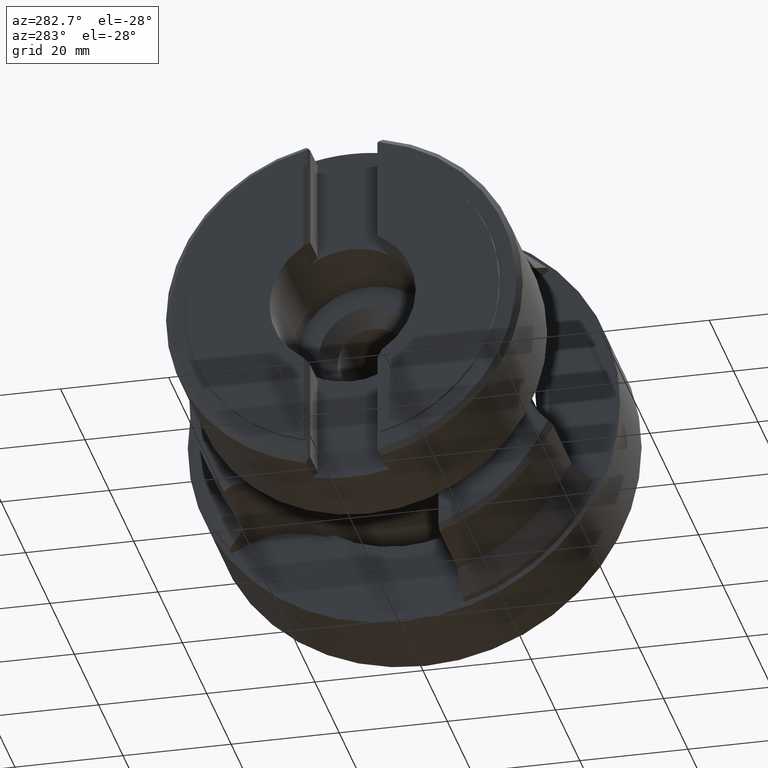
[diagram: clean part render]
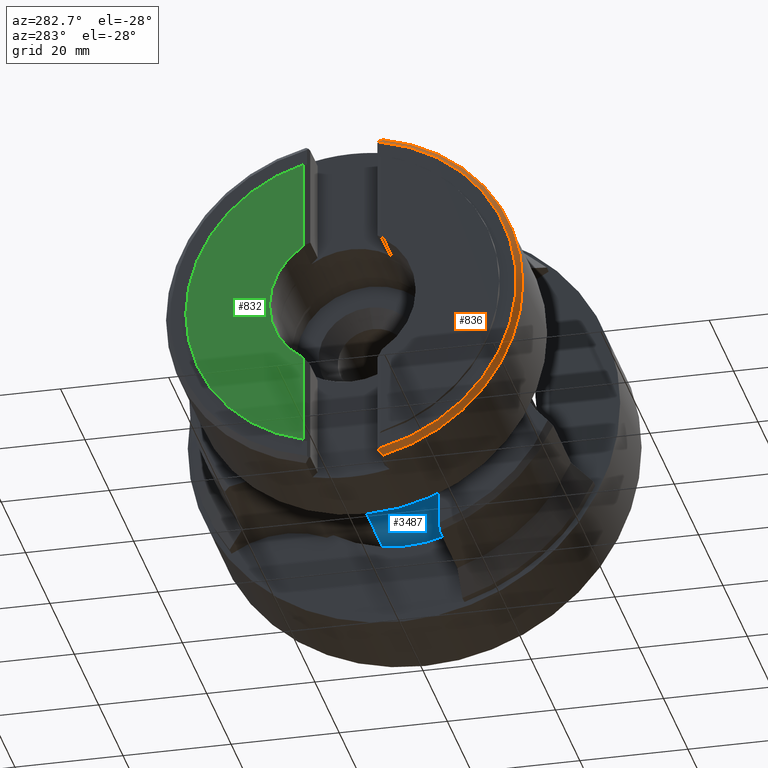
[diagram: same view with three faces highlighted in distinct colors, each labeled with its STEP entity id]
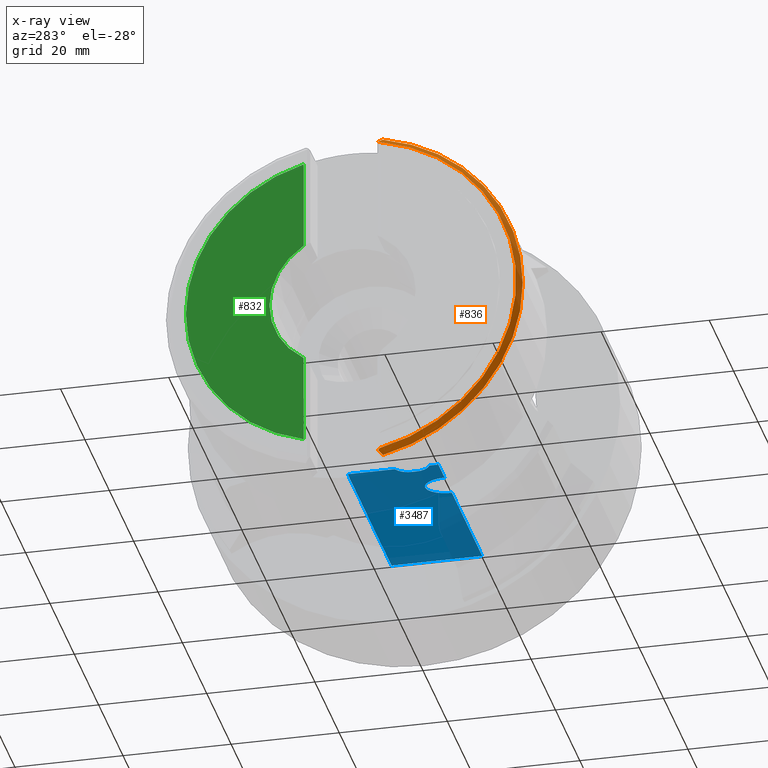
[diagram: x-ray of the same camera — body ghosted, the three highlighted faces saturated]
A machine part, auxiliary view with three faces highlighted in distinct colors.
The next image is the same camera in x-ray (body ghosted, the three faces saturated) — at least one of them is partly hidden behind the body in this view.
Their STEP definitions:

[orange] entity #836 — the highlighted conical surface has half-angle 45 deg.
#387 = CARTESIAN_POINT ( 'NONE',  ( -65.50000000000000000, 0.0000000000000000000, 0.0000000000000000000 ) ) ;
#391 = DIRECTION ( 'NONE',  ( -1.000000000000000000, 0.0000000000000000000, 0.0000000000000000000 ) ) ;
#401 = DIRECTION ( 'NONE',  ( 0.0000000000000000000, 0.0000000000000000000, -1.000000000000000000 ) ) ;
#403 = CARTESIAN_POINT ( 'NONE',  ( -65.26845168078169500, -6.468451680781776700, -31.57581099366245400 ) ) ;
#404 = CARTESIAN_POINT ( 'NONE',  ( -65.01305832924452900, -6.684823942242562800, -31.79218325512323800 ) ) ;
#409 = CARTESIAN_POINT ( 'NONE',  ( -64.75688560303898100, -6.900737243436138300, -32.00809655631681500 ) ) ;
#410 = CARTESIAN_POINT ( 'NONE',  ( -64.49999999999998600, -7.116224437974461900, -32.22358375085513400 ) ) ;
#603 = AXIS2_PLACEMENT_3D ( 'NONE', #4609, #4608, #4610 ) ;
#737 = VERTEX_POINT ( 'NONE', #4750 ) ;
#748 = VERTEX_POINT ( 'NONE', #4740 ) ;
#749 = VERTEX_POINT ( 'NONE', #4739 ) ;
#751 = VERTEX_POINT ( 'NONE', #4737 ) ;
#752 = VERTEX_POINT ( 'NONE', #4736 ) ;
#753 = VERTEX_POINT ( 'NONE', #4735 ) ;
#836 = ADVANCED_FACE ( 'NONE', ( #2336 ), #2344, .T. ) ;
#1157 = EDGE_LOOP ( 'NONE', ( #1348, #1347, #1346, #1345, #1344, #1343 ) ) ;
#1343 = ORIENTED_EDGE ( 'NONE', *, *, #3242, .F. ) ;
#1344 = ORIENTED_EDGE ( 'NONE', *, *, #3282, .F. ) ;
#1345 = ORIENTED_EDGE ( 'NONE', *, *, #3326, .F. ) ;
#1346 = ORIENTED_EDGE ( 'NONE', *, *, #3407, .F. ) ;
#1347 = ORIENTED_EDGE ( 'NONE', *, *, #3101, .F. ) ;
#1348 = ORIENTED_EDGE ( 'NONE', *, *, #3342, .F. ) ;
#1630 = DIRECTION ( 'NONE',  ( 0.0000000000000000000, 0.0000000000000000000, -1.000000000000000000 ) ) ;
#1631 = DIRECTION ( 'NONE',  ( 1.000000000000000000, 0.0000000000000000000, 0.0000000000000000000 ) ) ;
#1632 = CARTESIAN_POINT ( 'NONE',  ( -64.49999999999998600, 0.0000000000000000000, 0.0000000000000000000 ) ) ;
#1876 = CARTESIAN_POINT ( 'NONE',  ( -65.50000000000000000, -6.700000000000070300, -31.29073345257344500 ) ) ;
#1877 = CARTESIAN_POINT ( 'NONE',  ( -65.42296870992433400, -6.622968709924411900, -31.38600481878947000 ) ) ;
#1882 = CARTESIAN_POINT ( 'NONE',  ( -65.34578476908986000, -6.545784769089933300, -31.48102988041959100 ) ) ;
#1883 = CARTESIAN_POINT ( 'NONE',  ( -65.26845168078169500, -6.468451680781776700, -31.57581099366245400 ) ) ;
#1916 = CARTESIAN_POINT ( 'NONE',  ( -64.49999999999998600, -7.116224437974453900, 32.22358375085514100 ) ) ;
#1917 = CARTESIAN_POINT ( 'NONE',  ( -64.75688560303898100, -6.900737243436133800, 32.00809655631682200 ) ) ;
#1922 = CARTESIAN_POINT ( 'NONE',  ( -65.01305832924452900, -6.684823942242554800, 31.79218325512323800 ) ) ;
#1923 = CARTESIAN_POINT ( 'NONE',  ( -65.26845168078169500, -6.468451680781778500, 31.57581099366246100 ) ) ;
#2037 = CARTESIAN_POINT ( 'NONE',  ( -65.26845168078169500, -6.468451680781778500, 31.57581099366246100 ) ) ;
#2038 = CARTESIAN_POINT ( 'NONE',  ( -65.34578476908984600, -6.545784769089931600, 31.48102988041959100 ) ) ;
#2041 = CARTESIAN_POINT ( 'NONE',  ( -65.42296870992433400, -6.622968709924409200, 31.38600481878947700 ) ) ;
#2042 = CARTESIAN_POINT ( 'NONE',  ( -65.50000000000000000, -6.700000000000070300, 31.29073345257344500 ) ) ;
#2336 = FACE_OUTER_BOUND ( 'NONE', #1157, .T. ) ;
#2344 = CONICAL_SURFACE ( 'NONE', #603, 32.00000000000000000, 0.7853981633974415100 ) ;
#2491 = AXIS2_PLACEMENT_3D ( 'NONE', #1632, #1631, #1630 ) ;
#2554 = AXIS2_PLACEMENT_3D ( 'NONE', #387, #391, #401 ) ;
#2666 = CIRCLE ( 'NONE', #2554, 32.00000000000000000 ) ;
#2804 = B_SPLINE_CURVE_WITH_KNOTS ( 'NONE', 3,
 ( #410, #409, #404, #403 ),
 .UNSPECIFIED., .F., .F.,
 ( 4, 4 ),
 ( 3.103091456204127800E-007, 0.001196026102724195000 ),
 .UNSPECIFIED. ) ;
#2816 = B_SPLINE_CURVE_WITH_KNOTS ( 'NONE', 3,
 ( #1923, #1922, #1917, #1916 ),
 .UNSPECIFIED., .F., .F.,
 ( 4, 4 ),
 ( 0.0003620073726228053500, 0.001557723166201373000 ),
 .UNSPECIFIED. ) ;
#2837 = B_SPLINE_CURVE_WITH_KNOTS ( 'NONE', 3,
 ( #2042, #2041, #2038, #2037 ),
 .UNSPECIFIED., .F., .F.,
 ( 4, 4 ),
 ( 3.757443752620099400E-007, 0.0004345390574576388600 ),
 .UNSPECIFIED. ) ;
#3101 = EDGE_CURVE ( 'NONE', #752, #753, #2804, .T. ) ;
#3242 = EDGE_CURVE ( 'NONE', #751, #748, #2666, .T. ) ;
#3282 = EDGE_CURVE ( 'NONE', #748, #737, #2837, .T. ) ;
#3326 = EDGE_CURVE ( 'NONE', #737, #749, #2816, .T. ) ;
#3342 = EDGE_CURVE ( 'NONE', #753, #751, #4434, .T. ) ;
#3407 = EDGE_CURVE ( 'NONE', #749, #752, #3593, .T. ) ;
#3593 = CIRCLE ( 'NONE', #2491, 33.00000000000000000 ) ;
#4434 = B_SPLINE_CURVE_WITH_KNOTS ( 'NONE', 3,
 ( #1883, #1882, #1877, #1876 ),
 .UNSPECIFIED., .F., .F.,
 ( 4, 4 ),
 ( 0.0003674702389595656800, 0.0008016335520419370700 ),
 .UNSPECIFIED. ) ;
#4608 = DIRECTION ( 'NONE',  ( 1.000000000000000000, 0.0000000000000000000, 0.0000000000000000000 ) ) ;
#4609 = CARTESIAN_POINT ( 'NONE',  ( -65.50000000000000000, 0.0000000000000000000, 0.0000000000000000000 ) ) ;
#4610 = DIRECTION ( 'NONE',  ( 0.0000000000000000000, 0.0000000000000000000, -1.000000000000000000 ) ) ;
#4735 = CARTESIAN_POINT ( 'NONE',  ( -65.26845168078169500, -6.468451680781776700, -31.57581099366245400 ) ) ;
#4736 = CARTESIAN_POINT ( 'NONE',  ( -64.49999999999998600, -7.116224437974461900, -32.22358375085513400 ) ) ;
#4737 = CARTESIAN_POINT ( 'NONE',  ( -65.50000000000000000, -6.700000000000070300, -31.29073345257344500 ) ) ;
#4739 = CARTESIAN_POINT ( 'NONE',  ( -64.49999999999998600, -7.116224437974453900, 32.22358375085514100 ) ) ;
#4740 = CARTESIAN_POINT ( 'NONE',  ( -65.50000000000000000, -6.700000000000070300, 31.29073345257344500 ) ) ;
#4750 = CARTESIAN_POINT ( 'NONE',  ( -65.26845168078169500, -6.468451680781778500, 31.57581099366246100 ) ) ;

[blue] entity #3487 — the highlighted planar face has unit normal (0, -0, 1).
#54 = CARTESIAN_POINT ( 'NONE',  ( -0.9999999999999991100, 23.50000000000000000, -20.39000000000000100 ) ) ;
#71 = DIRECTION ( 'NONE',  ( 0.0000000000000000000, -1.000000000000000000, 0.0000000000000000000 ) ) ;
#85 = CARTESIAN_POINT ( 'NONE',  ( -37.00000000000001400, 37.84745875999999500, -20.39000000000000100 ) ) ;
#88 = DIRECTION ( 'NONE',  ( 0.0000000000000000000, 1.000000000000000000, 0.0000000000000000000 ) ) ;
#114 = DIRECTION ( 'NONE',  ( 0.0000000000000000000, 1.000000000000000000, 0.0000000000000000000 ) ) ;
#115 = CARTESIAN_POINT ( 'NONE',  ( -35.30000000000001800, -11.17000000000000300, -20.39000000000000100 ) ) ;
#116 = CARTESIAN_POINT ( 'NONE',  ( -25.90000000000000600, -11.17000000000000300, -20.39000000000000100 ) ) ;
#117 = CARTESIAN_POINT ( 'NONE',  ( -25.90000000000000900, -8.684718625761433900, -20.38999999999999700 ) ) ;
#127 = CARTESIAN_POINT ( 'NONE',  ( -28.90000000000000900, -6.927359312880719600, -20.39000000000000100 ) ) ;
#131 = CARTESIAN_POINT ( 'NONE',  ( -27.14264068711928600, -6.927359312880718700, -20.38999999999999700 ) ) ;
#172 = DIRECTION ( 'NONE',  ( 0.0000000000000000000, 1.000000000000000000, 0.0000000000000000000 ) ) ;
#184 = CARTESIAN_POINT ( 'NONE',  ( -37.00000000000001400, 37.84745875999999500, -20.39000000000000100 ) ) ;
#392 = DIRECTION ( 'NONE',  ( 1.000000000000000000, -0.0000000000000000000, -0.0000000000000000000 ) ) ;
#402 = CARTESIAN_POINT ( 'NONE',  ( -40.00000000000000000, -11.17000000000000300, -20.39000000000000100 ) ) ;
#1285 = VERTEX_POINT ( 'NONE', #5229 ) ;
#1286 = VERTEX_POINT ( 'NONE', #5278 ) ;
#1554 = PLANE ( 'NONE',  #2637 ) ;
#1598 = DIRECTION ( 'NONE',  ( 1.000000000000000000, 0.0000000000000000000, -0.0000000000000000000 ) ) ;
#1656 = DIRECTION ( 'NONE',  ( 0.0000000000000000000, -0.0000000000000000000, 1.000000000000000000 ) ) ;
#1694 = CARTESIAN_POINT ( 'NONE',  ( -28.90000000000000900, -6.927359312880719600, -20.39000000000000100 ) ) ;
#1695 = CARTESIAN_POINT ( 'NONE',  ( -30.65735931288072200, -6.927359312880718700, -20.38999999999999700 ) ) ;
#1702 = CARTESIAN_POINT ( 'NONE',  ( -31.90000000000001300, -11.17000000000000300, -20.39000000000000100 ) ) ;
#1703 = CARTESIAN_POINT ( 'NONE',  ( -31.90000000000001300, -8.684718625761433900, -20.38999999999999700 ) ) ;
#1786 = DIRECTION ( 'NONE',  ( 1.000000000000000000, 0.0000000000000000000, 0.0000000000000000000 ) ) ;
#1787 = DIRECTION ( 'NONE',  ( 0.0000000000000000000, -0.0000000000000000000, 1.000000000000000000 ) ) ;
#1788 = CARTESIAN_POINT ( 'NONE',  ( -38.30000000000001100, -5.820000000000008300, -20.39000000000000100 ) ) ;
#1804 = CARTESIAN_POINT ( 'NONE',  ( -40.00000000000000000, -11.17000000000000300, -20.39000000000000100 ) ) ;
#1928 = CARTESIAN_POINT ( 'NONE',  ( -40.00000000000000000, 5.591571354244156700, -20.39000000000000400 ) ) ;
#1932 = DIRECTION ( 'NONE',  ( 1.000000000000000000, -0.0000000000000000000, -0.0000000000000000000 ) ) ;
#1950 = CARTESIAN_POINT ( 'NONE',  ( -40.00000000000000000, -11.17000000000000300, -20.39000000000000100 ) ) ;
#1960 = DIRECTION ( 'NONE',  ( 1.000000000000000000, 0.0000000000000000000, 0.0000000000000000000 ) ) ;
#1961 = DIRECTION ( 'NONE',  ( 0.0000000000000000000, -0.0000000000000000000, 1.000000000000000000 ) ) ;
#1962 = CARTESIAN_POINT ( 'NONE',  ( -38.30000000000001100, -6.820000000000007400, -20.39000000000000100 ) ) ;
#1963 = DIRECTION ( 'NONE',  ( 1.000000000000000000, -0.0000000000000000000, -0.0000000000000000000 ) ) ;
#2243 = EDGE_LOOP ( 'NONE', ( #2873, #2872, #2871, #2870, #2869, #2868, #2867, #2866, #2865, #2864, #2863 ) ) ;
#2470 = AXIS2_PLACEMENT_3D ( 'NONE', #1962, #1961, #1960 ) ;
#2490 = AXIS2_PLACEMENT_3D ( 'NONE', #1788, #1787, #1786 ) ;
#2637 = AXIS2_PLACEMENT_3D ( 'NONE', #1804, #1656, #1598 ) ;
#2749 = LINE ( 'NONE', #1950, #2758 ) ;
#2751 = CIRCLE ( 'NONE', #2470, 2.999999999999995600 ) ;
#2758 = VECTOR ( 'NONE', #1963, 1000.000000000000000 ) ;
#2781 = LINE ( 'NONE', #1928, #2783 ) ;
#2783 = VECTOR ( 'NONE', #1932, 1000.000000000000000 ) ;
#2836 =( BOUNDED_CURVE ( )  B_SPLINE_CURVE ( 3, ( #127, #131, #117, #116 ),
 .UNSPECIFIED., .F., .T. ) 
 B_SPLINE_CURVE_WITH_KNOTS ( ( 4, 4 ),
 ( 0.0000000000000000000, 1.570796326794896600 ),
 .UNSPECIFIED. ) 
 CURVE ( )  GEOMETRIC_REPRESENTATION_ITEM ( )  RATIONAL_B_SPLINE_CURVE ( ( 1.000000000000000000, 0.8047378541243649400, 0.8047378541243649400, 1.000000000000000000 ) ) 
 REPRESENTATION_ITEM ( '' )  );
#2863 = ORIENTED_EDGE ( 'NONE', *, *, #3309, .T. ) ;
#2864 = ORIENTED_EDGE ( 'NONE', *, *, #3207, .T. ) ;
#2865 = ORIENTED_EDGE ( 'NONE', *, *, #3314, .F. ) ;
#2866 = ORIENTED_EDGE ( 'NONE', *, *, #3392, .F. ) ;
#2867 = ORIENTED_EDGE ( 'NONE', *, *, #3191, .F. ) ;
#2868 = ORIENTED_EDGE ( 'NONE', *, *, #3105, .F. ) ;
#2869 = ORIENTED_EDGE ( 'NONE', *, *, #3218, .T. ) ;
#2870 = ORIENTED_EDGE ( 'NONE', *, *, #3330, .T. ) ;
#2871 = ORIENTED_EDGE ( 'NONE', *, *, #3171, .T. ) ;
#2872 = ORIENTED_EDGE ( 'NONE', *, *, #3367, .T. ) ;
#2873 = ORIENTED_EDGE ( 'NONE', *, *, #3192, .T. ) ;
#3020 = VERTEX_POINT ( 'NONE', #4993 ) ;
#3021 = VERTEX_POINT ( 'NONE', #4929 ) ;
#3053 = VERTEX_POINT ( 'NONE', #4896 ) ;
#3055 = VERTEX_POINT ( 'NONE', #4894 ) ;
#3057 = VERTEX_POINT ( 'NONE', #4892 ) ;
#3061 = VERTEX_POINT ( 'NONE', #4888 ) ;
#3066 = VERTEX_POINT ( 'NONE', #4883 ) ;
#3067 = VERTEX_POINT ( 'NONE', #4882 ) ;
#3069 = VERTEX_POINT ( 'NONE', #4880 ) ;
#3105 = EDGE_CURVE ( 'NONE', #3067, #3069, #3984, .T. ) ;
#3171 = EDGE_CURVE ( 'NONE', #3021, #3020, #4330, .T. ) ;
#3191 = EDGE_CURVE ( 'NONE', #1286, #3067, #2836, .T. ) ;
#3192 = EDGE_CURVE ( 'NONE', #3057, #3061, #4363, .T. ) ;
#3207 = EDGE_CURVE ( 'NONE', #3055, #3053, #4384, .T. ) ;
#3218 = EDGE_CURVE ( 'NONE', #3066, #3069, #4402, .T. ) ;
#3309 = EDGE_CURVE ( 'NONE', #3053, #3057, #2751, .T. ) ;
#3314 = EDGE_CURVE ( 'NONE', #3055, #1285, #2749, .T. ) ;
#3330 = EDGE_CURVE ( 'NONE', #3020, #3066, #2781, .T. ) ;
#3367 = EDGE_CURVE ( 'NONE', #3061, #3021, #3545, .T. ) ;
#3392 = EDGE_CURVE ( 'NONE', #1285, #1286, #4438, .T. ) ;
#3487 = ADVANCED_FACE ( 'NONE', ( #3725 ), #1554, .F. ) ;
#3545 = CIRCLE ( 'NONE', #2490, 2.999999999999995600 ) ;
#3725 = FACE_OUTER_BOUND ( 'NONE', #2243, .T. ) ;
#3984 = LINE ( 'NONE', #402, #3989 ) ;
#3989 = VECTOR ( 'NONE', #392, 1000.000000000000000 ) ;
#4330 = LINE ( 'NONE', #184, #4339 ) ;
#4339 = VECTOR ( 'NONE', #172, 1000.000000000000000 ) ;
#4363 = LINE ( 'NONE', #115, #4366 ) ;
#4366 = VECTOR ( 'NONE', #114, 1000.000000000000000 ) ;
#4384 = LINE ( 'NONE', #85, #4386 ) ;
#4386 = VECTOR ( 'NONE', #88, 1000.000000000000000 ) ;
#4402 = LINE ( 'NONE', #54, #4404 ) ;
#4404 = VECTOR ( 'NONE', #71, 1000.000000000000000 ) ;
#4438 =( BOUNDED_CURVE ( )  B_SPLINE_CURVE ( 3, ( #1702, #1703, #1695, #1694 ),
 .UNSPECIFIED., .F., .F. ) 
 B_SPLINE_CURVE_WITH_KNOTS ( ( 4, 4 ),
 ( 4.712388980384689700, 6.283185307179586200 ),
 .UNSPECIFIED. ) 
 CURVE ( )  GEOMETRIC_REPRESENTATION_ITEM ( )  RATIONAL_B_SPLINE_CURVE ( ( 1.000000000000000000, 0.8047378541243649400, 0.8047378541243649400, 1.000000000000000000 ) ) 
 REPRESENTATION_ITEM ( '' )  );
#4880 = CARTESIAN_POINT ( 'NONE',  ( -1.000000000000000900, -11.17000000000000300, -20.39000000000000100 ) ) ;
#4882 = CARTESIAN_POINT ( 'NONE',  ( -25.90000000000000600, -11.17000000000000300, -20.39000000000000100 ) ) ;
#4883 = CARTESIAN_POINT ( 'NONE',  ( -1.000000000000000900, 5.591571354244156700, -20.39000000000000400 ) ) ;
#4888 = CARTESIAN_POINT ( 'NONE',  ( -35.30000000000001800, -5.820000000000008300, -20.39000000000000100 ) ) ;
#4892 = CARTESIAN_POINT ( 'NONE',  ( -35.30000000000001800, -6.820000000000007400, -20.39000000000000100 ) ) ;
#4894 = CARTESIAN_POINT ( 'NONE',  ( -37.00000000000001400, -11.17000000000000300, -20.39000000000000100 ) ) ;
#4896 = CARTESIAN_POINT ( 'NONE',  ( -37.00000000000001400, -9.523701166919158500, -20.39000000000000100 ) ) ;
#4929 = CARTESIAN_POINT ( 'NONE',  ( -37.00000000000001400, -3.116298833080857200, -20.39000000000000400 ) ) ;
#4993 = CARTESIAN_POINT ( 'NONE',  ( -37.00000000000001400, 5.591571354244156700, -20.39000000000000400 ) ) ;
#5229 = CARTESIAN_POINT ( 'NONE',  ( -31.90000000000001300, -11.17000000000000300, -20.39000000000000100 ) ) ;
#5278 = CARTESIAN_POINT ( 'NONE',  ( -28.90000000000000900, -6.927359312880719600, -20.39000000000000100 ) ) ;

[green] entity #832 — the highlighted planar face has unit normal (1, 0, -0).
#42 = DIRECTION ( 'NONE',  ( 0.0000000000000000000, 0.0000000000000000000, 1.000000000000000000 ) ) ;
#43 = CARTESIAN_POINT ( 'NONE',  ( -66.00000000000000000, 7.200000000000046400, 0.0000000000000000000 ) ) ;
#199 = CARTESIAN_POINT ( 'NONE',  ( -66.00000000000000000, 6.200000000000038400, 12.52264068711929000 ) ) ;
#202 = DIRECTION ( 'NONE',  ( 0.0000000000000000000, 0.7071067811865462400, -0.7071067811865489100 ) ) ;
#450 = ORIENTED_EDGE ( 'NONE', *, *, #3333, .T. ) ;
#453 = ORIENTED_EDGE ( 'NONE', *, *, #3293, .F. ) ;
#454 = ORIENTED_EDGE ( 'NONE', *, *, #3337, .F. ) ;
#455 = ORIENTED_EDGE ( 'NONE', *, *, #3246, .T. ) ;
#456 = ORIENTED_EDGE ( 'NONE', *, *, #3163, .F. ) ;
#457 = ORIENTED_EDGE ( 'NONE', *, *, #3220, .T. ) ;
#601 = AXIS2_PLACEMENT_3D ( 'NONE', #4625, #4615, #4620 ) ;
#755 = VERTEX_POINT ( 'NONE', #4733 ) ;
#756 = VERTEX_POINT ( 'NONE', #4732 ) ;
#758 = VERTEX_POINT ( 'NONE', #4730 ) ;
#759 = VERTEX_POINT ( 'NONE', #4729 ) ;
#760 = VERTEX_POINT ( 'NONE', #4728 ) ;
#761 = VERTEX_POINT ( 'NONE', #4727 ) ;
#832 = ADVANCED_FACE ( 'NONE', ( #2330 ), #4628, .F. ) ;
#1150 = EDGE_LOOP ( 'NONE', ( #455, #457, #454, #453, #456, #450 ) ) ;
#1890 = DIRECTION ( 'NONE',  ( -0.0000000000000000000, -0.7071067811865474600, -0.7071067811865474600 ) ) ;
#1892 = CARTESIAN_POINT ( 'NONE',  ( -66.00000000000000000, 6.200000000000038400, -12.52264068711927600 ) ) ;
#1904 = CARTESIAN_POINT ( 'NONE',  ( -66.00000000000000000, 7.200000000000046400, 0.0000000000000000000 ) ) ;
#1912 = DIRECTION ( 'NONE',  ( 0.0000000000000000000, 0.0000000000000000000, 1.000000000000000000 ) ) ;
#2006 = DIRECTION ( 'NONE',  ( 0.0000000000000000000, 0.0000000000000000000, -1.000000000000000000 ) ) ;
#2007 = DIRECTION ( 'NONE',  ( -1.000000000000000000, 0.0000000000000000000, 0.0000000000000000000 ) ) ;
#2008 = CARTESIAN_POINT ( 'NONE',  ( -66.00000000000000000, 0.0000000000000000000, 0.0000000000000000000 ) ) ;
#2330 = FACE_OUTER_BOUND ( 'NONE', #1150, .T. ) ;
#2531 = AXIS2_PLACEMENT_3D ( 'NONE', #4945, #4954, #4963 ) ;
#2609 = AXIS2_PLACEMENT_3D ( 'NONE', #2008, #2007, #2006 ) ;
#2671 = CIRCLE ( 'NONE', #2531, 28.99999999999998900 ) ;
#2728 = CIRCLE ( 'NONE', #2609, 13.52500000000000000 ) ;
#2777 = LINE ( 'NONE', #1904, #2788 ) ;
#2788 = VECTOR ( 'NONE', #1912, 1000.000000000000000 ) ;
#2791 = LINE ( 'NONE', #1892, #2794 ) ;
#2794 = VECTOR ( 'NONE', #1890, 1000.000000000000100 ) ;
#3163 = EDGE_CURVE ( 'NONE', #759, #758, #4322, .T. ) ;
#3220 = EDGE_CURVE ( 'NONE', #756, #761, #4405, .T. ) ;
#3246 = EDGE_CURVE ( 'NONE', #755, #756, #2671, .T. ) ;
#3293 = EDGE_CURVE ( 'NONE', #758, #760, #2728, .T. ) ;
#3333 = EDGE_CURVE ( 'NONE', #759, #755, #2777, .T. ) ;
#3337 = EDGE_CURVE ( 'NONE', #760, #761, #2791, .T. ) ;
#4322 = LINE ( 'NONE', #199, #4326 ) ;
#4326 = VECTOR ( 'NONE', #202, 999.9999999999998900 ) ;
#4405 = LINE ( 'NONE', #43, #4408 ) ;
#4408 = VECTOR ( 'NONE', #42, 1000.000000000000000 ) ;
#4615 = DIRECTION ( 'NONE',  ( 1.000000000000000000, 0.0000000000000000000, -0.0000000000000000000 ) ) ;
#4620 = DIRECTION ( 'NONE',  ( -0.0000000000000000000, 0.0000000000000000000, -1.000000000000000000 ) ) ;
#4625 = CARTESIAN_POINT ( 'NONE',  ( -66.00000000000000000, 42.12699044966469600, 0.0000000000000000000 ) ) ;
#4628 = PLANE ( 'NONE',  #601 ) ;
#4727 = CARTESIAN_POINT ( 'NONE',  ( -66.00000000000000000, 7.200000000000046400, -11.52264068711926900 ) ) ;
#4728 = CARTESIAN_POINT ( 'NONE',  ( -66.00000000000000000, 7.404666586438570300, -11.31797410068074900 ) ) ;
#4729 = CARTESIAN_POINT ( 'NONE',  ( -66.00000000000000000, 7.200000000000046400, 11.52264068711927800 ) ) ;
#4730 = CARTESIAN_POINT ( 'NONE',  ( -66.00000000000000000, 7.404666586438590800, 11.31797410068073400 ) ) ;
#4732 = CARTESIAN_POINT ( 'NONE',  ( -66.00000000000000000, 7.200000000000048100, -28.09199174141981100 ) ) ;
#4733 = CARTESIAN_POINT ( 'NONE',  ( -66.00000000000000000, 7.200000000000048100, 28.09199174141981100 ) ) ;
#4945 = CARTESIAN_POINT ( 'NONE',  ( -66.00000000000000000, 0.0000000000000000000, 0.0000000000000000000 ) ) ;
#4954 = DIRECTION ( 'NONE',  ( -1.000000000000000000, 0.0000000000000000000, 0.0000000000000000000 ) ) ;
#4963 = DIRECTION ( 'NONE',  ( 0.0000000000000000000, 0.0000000000000000000, -1.000000000000000000 ) ) ;